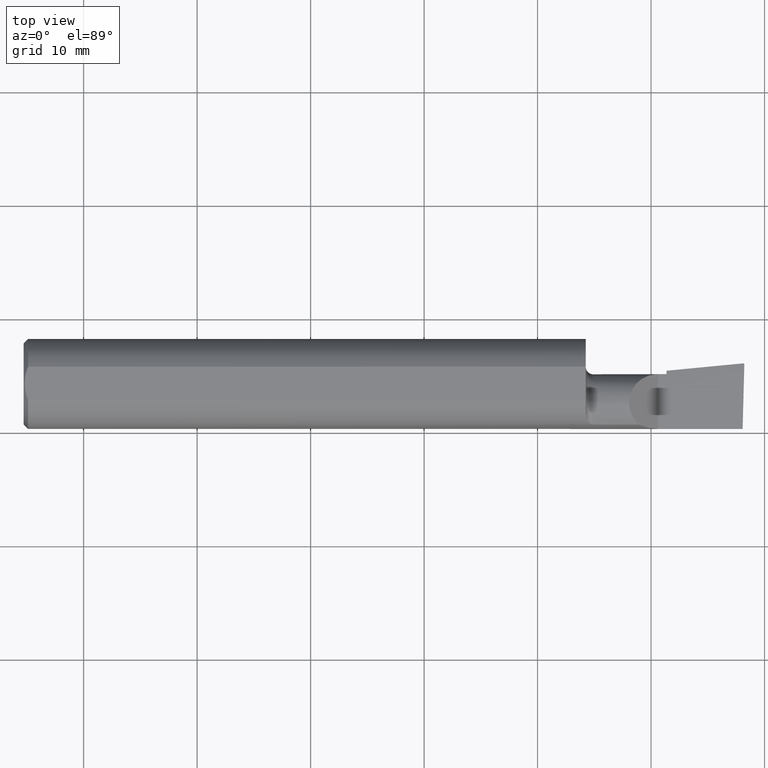
[diagram: clean part render]
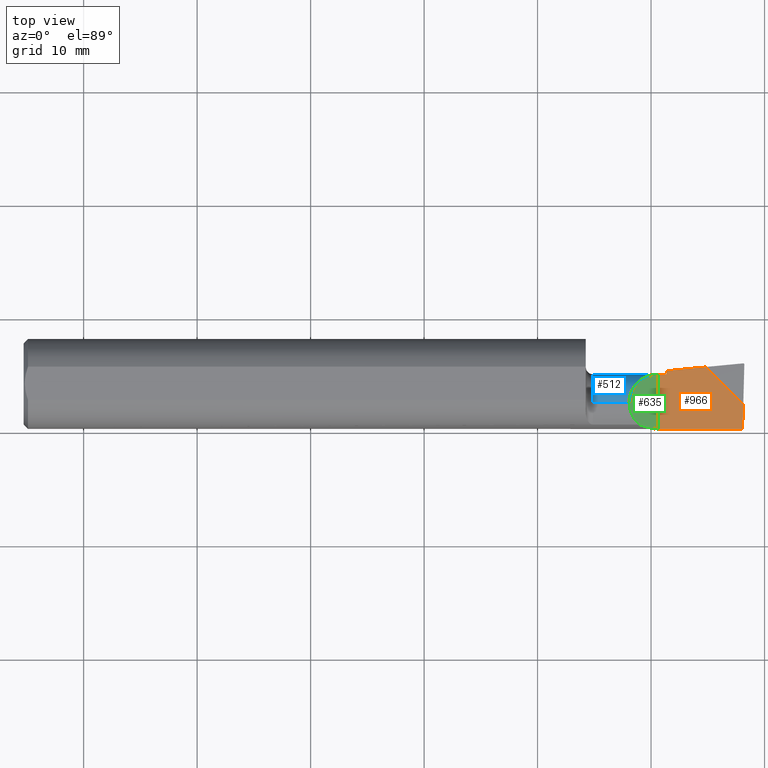
[diagram: same view with three faces highlighted in distinct colors, each labeled with its STEP entity id]
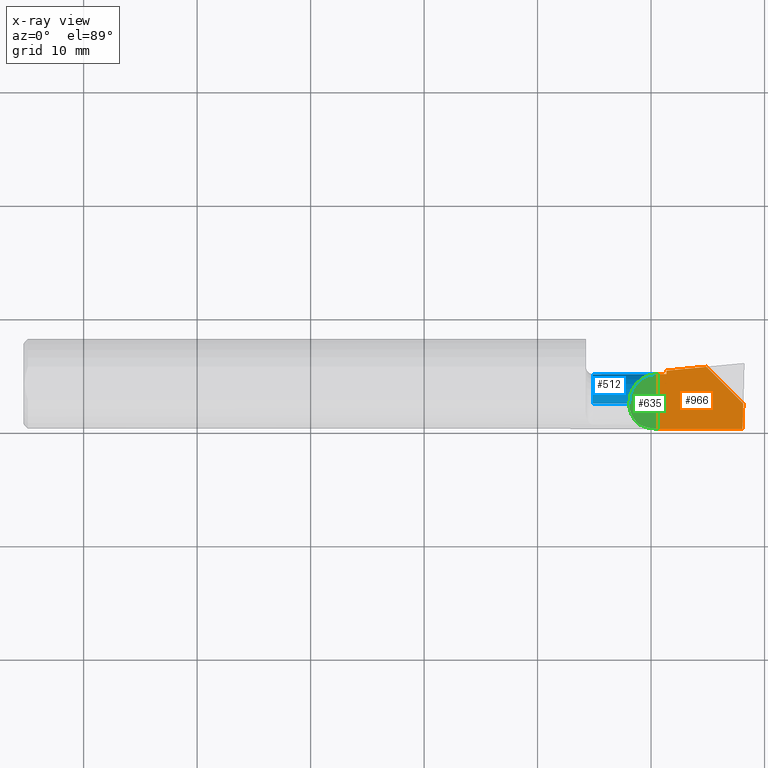
[diagram: x-ray of the same camera — body ghosted, the three highlighted faces saturated]
A machine part, top view with three faces highlighted in distinct colors.
The next image is the same camera in x-ray (body ghosted, the three faces saturated) — at least one of them is partly hidden behind the body in this view.
Their STEP definitions:

[orange] entity #966 — the highlighted planar face has unit normal (0, 0, -1).
#49 = VERTEX_POINT ( 'NONE', #256 ) ;
#51 = PLANE ( 'NONE',  #519 ) ;
#54 = CARTESIAN_POINT ( 'NONE',  ( 55.88000000000000256, -3.964939999999999465, -8.673617379884035472E-16 ) ) ;
#56 = CARTESIAN_POINT ( 'NONE',  ( 56.19984000534059021, 1.123334542424496041, -8.673617379884035472E-16 ) ) ;
#110 = VECTOR ( 'NONE', #1213, 999.9999999999998863 ) ;
#141 = EDGE_CURVE ( 'NONE', #336, #356, #1207, .T. ) ;
#158 = CARTESIAN_POINT ( 'NONE',  ( 56.64199999999999591, 4.444999999999999396, -8.673617379884035472E-16 ) ) ;
#166 = VECTOR ( 'NONE', #248, 1000.000000000000114 ) ;
#189 = CARTESIAN_POINT ( 'NONE',  ( 55.88000000000000256, 0.8610600000000002696, -8.673617379884035472E-16 ) ) ;
#201 = CARTESIAN_POINT ( 'NONE',  ( 59.81700000000001438, 1.826260000000001327, 0.000000000000000000 ) ) ;
#206 = DIRECTION ( 'NONE',  ( 1.000000000000000000, 0.000000000000000000, 0.000000000000000000 ) ) ;
#208 = VERTEX_POINT ( 'NONE', #189 ) ;
#214 = DIRECTION ( 'NONE',  ( 0.7071067811865439090, -0.7071067811865512365, 0.000000000000000000 ) ) ;
#216 = EDGE_CURVE ( 'NONE', #430, #208, #472, .T. ) ;
#231 = ORIENTED_EDGE ( 'NONE', *, *, #216, .F. ) ;
#248 = DIRECTION ( 'NONE',  ( 0.02637339639456100920, 0.9996521614854915194, 0.000000000000000000 ) ) ;
#256 = CARTESIAN_POINT ( 'NONE',  ( 63.40533060490047035, -1.762070604900495274, 0.000000000000000000 ) ) ;
#264 = LINE ( 'NONE', #862, #893 ) ;
#294 = EDGE_CURVE ( 'NONE', #336, #49, #878, .T. ) ;
#300 = LINE ( 'NONE', #1063, #311 ) ;
#311 = VECTOR ( 'NONE', #206, 1000.000000000000000 ) ;
#336 = VERTEX_POINT ( 'NONE', #684 ) ;
#340 = DIRECTION ( 'NONE',  ( -0.000000000000000000, 0.000000000000000000, -1.000000000000000000 ) ) ;
#342 = ORIENTED_EDGE ( 'NONE', *, *, #411, .F. ) ;
#356 = VERTEX_POINT ( 'NONE', #984 ) ;
#358 = CARTESIAN_POINT ( 'NONE',  ( 63.34721324168081225, -3.964939999999998577, -1.734723475976807094E-15 ) ) ;
#371 = DIRECTION ( 'NONE',  ( -1.000000000000000000, -0.000000000000000000, -0.000000000000000000 ) ) ;
#384 = CARTESIAN_POINT ( 'NONE',  ( 55.88000000000000256, 4.444999999999999396, -8.673617379884035472E-16 ) ) ;
#411 = EDGE_CURVE ( 'NONE', #208, #508, #300, .T. ) ;
#430 = VERTEX_POINT ( 'NONE', #54 ) ;
#442 = LINE ( 'NONE', #547, #166 ) ;
#447 = EDGE_CURVE ( 'NONE', #1229, #49, #442, .T. ) ;
#472 = LINE ( 'NONE', #384, #483 ) ;
#483 = VECTOR ( 'NONE', #1238, 1000.000000000000000 ) ;
#508 = VERTEX_POINT ( 'NONE', #824 ) ;
#519 = AXIS2_PLACEMENT_3D ( 'NONE', #706, #340, #901 ) ;
#547 = CARTESIAN_POINT ( 'NONE',  ( 63.56374090757875450, 4.242283142520748562, -8.673617379884035472E-16 ) ) ;
#553 = DIRECTION ( 'NONE',  ( 0.000000000000000000, 1.000000000000000000, 0.000000000000000000 ) ) ;
#574 = EDGE_CURVE ( 'NONE', #508, #356, #926, .T. ) ;
#575 = VECTOR ( 'NONE', #553, 1000.000000000000000 ) ;
#589 = ORIENTED_EDGE ( 'NONE', *, *, #141, .T. ) ;
#666 = EDGE_CURVE ( 'NONE', #1229, #430, #264, .T. ) ;
#684 = CARTESIAN_POINT ( 'NONE',  ( 60.14048454551709000, 1.502775454482920603, 0.000000000000000000 ) ) ;
#706 = CARTESIAN_POINT ( 'NONE',  ( 55.88000000000000256, 4.444999999999999396, -8.673617379884035472E-16 ) ) ;
#778 = ORIENTED_EDGE ( 'NONE', *, *, #574, .F. ) ;
#798 = VECTOR ( 'NONE', #214, 999.9999999999998863 ) ;
#824 = CARTESIAN_POINT ( 'NONE',  ( 56.64199999999999591, 0.8610600000000002696, -8.673617379884035472E-16 ) ) ;
#862 = CARTESIAN_POINT ( 'NONE',  ( 63.50000000000000000, -3.964939999999998577, -8.673617379884035472E-16 ) ) ;
#878 = LINE ( 'NONE', #201, #798 ) ;
#893 = VECTOR ( 'NONE', #371, 1000.000000000000000 ) ;
#901 = DIRECTION ( 'NONE',  ( -1.000000000000000000, 0.000000000000000000, 0.000000000000000000 ) ) ;
#926 = LINE ( 'NONE', #158, #575 ) ;
#966 = ADVANCED_FACE ( 'NONE', ( #1188 ), #51, .F. ) ;
#984 = CARTESIAN_POINT ( 'NONE',  ( 56.64199999999999591, 1.165909707461279421, -8.673617379884035472E-16 ) ) ;
#1063 = CARTESIAN_POINT ( 'NONE',  ( 49.53000000000000114, 0.8610600000000002696, -8.673617379884035472E-16 ) ) ;
#1089 = ORIENTED_EDGE ( 'NONE', *, *, #294, .F. ) ;
#1097 = ORIENTED_EDGE ( 'NONE', *, *, #447, .T. ) ;
#1167 = ORIENTED_EDGE ( 'NONE', *, *, #666, .F. ) ;
#1188 = FACE_OUTER_BOUND ( 'NONE', #1209, .T. ) ;
#1207 = LINE ( 'NONE', #56, #110 ) ;
#1209 = EDGE_LOOP ( 'NONE', ( #1097, #1089, #589, #778, #342, #231, #1167 ) ) ;
#1213 = DIRECTION ( 'NONE',  ( -0.9953961983671788527, -0.09584575252022424496, 0.000000000000000000 ) ) ;
#1229 = VERTEX_POINT ( 'NONE', #358 ) ;
#1238 = DIRECTION ( 'NONE',  ( -0.000000000000000000, 1.000000000000000000, -0.000000000000000000 ) ) ;

[blue] entity #512 — the highlighted cylindrical surface (edge-blend (fillet) strip) has radius 2.54 mm, axis along (-1, -0, -0).
#13 = LINE ( 'NONE', #891, #1071 ) ;
#14 = CARTESIAN_POINT ( 'NONE',  ( 56.57853211268948712, 0.02262286437495201682, -1.934391978167292914 ) ) ;
#23 = CARTESIAN_POINT ( 'NONE',  ( 56.64199999999999591, -0.3352786765604210406, -2.155498607722260207 ) ) ;
#39 = CARTESIAN_POINT ( 'NONE',  ( 50.16499999999999204, -1.678939999999999433, 2.540000000000000036 ) ) ;
#53 = CIRCLE ( 'NONE', #396, 2.540000000000000036 ) ;
#60 =( BOUNDED_CURVE ( )  B_SPLINE_CURVE ( 3, ( #1235, #14, #421, #504 ),
 .UNSPECIFIED., .F., .F. ) 
 B_SPLINE_CURVE_WITH_KNOTS ( ( 4, 4 ),
 ( 4.479557257772968981, 4.982985725396998689 ),
 .UNSPECIFIED. ) 
 CURVE ( )  GEOMETRIC_REPRESENTATION_ITEM ( )  RATIONAL_B_SPLINE_CURVE ( ( 1.000000000000000000, 0.9789912600431243117, 0.9789912600431243117, 1.000000000000000000 ) ) 
 REPRESENTATION_ITEM ( '' )  );
#62 = ORIENTED_EDGE ( 'NONE', *, *, #365, .F. ) ;
#65 = LINE ( 'NONE', #454, #1045 ) ;
#68 = ORIENTED_EDGE ( 'NONE', *, *, #177, .F. ) ;
#105 = ORIENTED_EDGE ( 'NONE', *, *, #585, .F. ) ;
#125 = CARTESIAN_POINT ( 'NONE',  ( 56.64199999999999591, 0.5162690332466144394, -1.277754788820009146 ) ) ;
#126 = VERTEX_POINT ( 'NONE', #1227 ) ;
#144 = CARTESIAN_POINT ( 'NONE',  ( 50.16499999999999204, -1.678939999999999433, 0.000000000000000000 ) ) ;
#154 = CYLINDRICAL_SURFACE ( 'NONE', #1011, 2.540000000000000036 ) ;
#170 = VERTEX_POINT ( 'NONE', #379 ) ;
#174 = CARTESIAN_POINT ( 'NONE',  ( 56.64199999999999591, -1.678939999999999433, -2.540000000000000480 ) ) ;
#177 = EDGE_CURVE ( 'NONE', #900, #126, #831, .T. ) ;
#184 = DIRECTION ( 'NONE',  ( -1.000000000000000000, -0.000000000000000000, -0.000000000000000000 ) ) ;
#189 = CARTESIAN_POINT ( 'NONE',  ( 55.88000000000000256, 0.8610600000000002696, -8.673617379884035472E-16 ) ) ;
#206 = DIRECTION ( 'NONE',  ( 1.000000000000000000, 0.000000000000000000, 0.000000000000000000 ) ) ;
#208 = VERTEX_POINT ( 'NONE', #189 ) ;
#225 = DIRECTION ( 'NONE',  ( 0.000000000000000000, 0.000000000000000000, -1.000000000000000000 ) ) ;
#229 = CIRCLE ( 'NONE', #932, 2.540000000000000036 ) ;
#272 = CARTESIAN_POINT ( 'NONE',  ( 56.63026341365514327, -0.3381379660845335589, -2.157280987322182764 ) ) ;
#275 = ORIENTED_EDGE ( 'NONE', *, *, #308, .F. ) ;
#278 = EDGE_CURVE ( 'NONE', #126, #989, #60, .T. ) ;
#280 = CARTESIAN_POINT ( 'NONE',  ( 56.61843269633377673, -0.3410007964591667551, -2.159057674088893819 ) ) ;
#300 = LINE ( 'NONE', #1063, #311 ) ;
#303 = ORIENTED_EDGE ( 'NONE', *, *, #278, .F. ) ;
#308 = EDGE_CURVE ( 'NONE', #423, #170, #922, .T. ) ;
#311 = VECTOR ( 'NONE', #206, 1000.000000000000000 ) ;
#321 = ORIENTED_EDGE ( 'NONE', *, *, #1179, .T. ) ;
#346 = FACE_OUTER_BOUND ( 'NONE', #987, .T. ) ;
#365 = EDGE_CURVE ( 'NONE', #989, #978, #488, .T. ) ;
#378 = AXIS2_PLACEMENT_3D ( 'NONE', #1194, #813, #918 ) ;
#379 = CARTESIAN_POINT ( 'NONE',  ( 53.34253999999999252, -1.678939999999999433, 2.540000000000000036 ) ) ;
#393 = CIRCLE ( 'NONE', #378, 2.540000000000000036 ) ;
#394 = CARTESIAN_POINT ( 'NONE',  ( 56.60306167935598154, 0.5218923600378172489, -1.268093797621263619 ) ) ;
#396 = AXIS2_PLACEMENT_3D ( 'NONE', #1020, #1118, #1036 ) ;
#399 = DIRECTION ( 'NONE',  ( -1.000000000000000000, -0.000000000000000000, -0.000000000000000000 ) ) ;
#411 = EDGE_CURVE ( 'NONE', #208, #508, #300, .T. ) ;
#421 = CARTESIAN_POINT ( 'NONE',  ( 56.54978564970318189, 0.3211662971372793440, -1.623811351964774552 ) ) ;
#423 = VERTEX_POINT ( 'NONE', #1205 ) ;
#428 = CARTESIAN_POINT ( 'NONE',  ( 50.16499999999999204, -1.678939999999999211, -2.540000000000000036 ) ) ;
#434 = CARTESIAN_POINT ( 'NONE',  ( 56.52208028681336316, 0.5329470779028453453, -1.248661505215251433 ) ) ;
#441 = DIRECTION ( 'NONE',  ( 1.000000000000000000, 0.000000000000000000, 0.000000000000000000 ) ) ;
#443 = VERTEX_POINT ( 'NONE', #428 ) ;
#454 = CARTESIAN_POINT ( 'NONE',  ( 49.53000000000000114, -1.678939999999999433, 2.540000000000000036 ) ) ;
#488 =( BOUNDED_CURVE ( )  B_SPLINE_CURVE ( 3, ( #774, #1159, #394, #125 ),
 .UNSPECIFIED., .F., .F. ) 
 B_SPLINE_CURVE_WITH_KNOTS ( ( 4, 4 ),
 ( 2.885266815324714518, 2.898469550304956677 ),
 .UNSPECIFIED. ) 
 CURVE ( )  GEOMETRIC_REPRESENTATION_ITEM ( )  RATIONAL_B_SPLINE_CURVE ( ( 1.000000000000000000, 0.9999854740351713511, 0.9999854740351713511, 1.000000000000000000 ) ) 
 REPRESENTATION_ITEM ( '' )  );
#504 = CARTESIAN_POINT ( 'NONE',  ( 56.52208028681336316, 0.5329470779028453453, -1.248661505215251433 ) ) ;
#508 = VERTEX_POINT ( 'NONE', #824 ) ;
#509 = CARTESIAN_POINT ( 'NONE',  ( 55.88000000000000256, 0.8610587299996853572, 0.002539999999979711265 ) ) ;
#512 = ADVANCED_FACE ( 'NONE', ( #346 ), #154, .T. ) ;
#585 = EDGE_CURVE ( 'NONE', #170, #967, #65, .T. ) ;
#630 = ORIENTED_EDGE ( 'NONE', *, *, #1057, .T. ) ;
#692 = VERTEX_POINT ( 'NONE', #174 ) ;
#697 = CARTESIAN_POINT ( 'NONE',  ( 54.39328266747760665, 0.8595720119238138279, 1.489257332522372135 ) ) ;
#747 = CARTESIAN_POINT ( 'NONE',  ( 56.64199999999999591, -1.678939999999999433, 0.000000000000000000 ) ) ;
#774 = CARTESIAN_POINT ( 'NONE',  ( 56.52208028681336316, 0.5329470779028453453, -1.248661505215251433 ) ) ;
#780 = CARTESIAN_POINT ( 'NONE',  ( 53.34253999999999252, -1.678939999999999433, 2.540000000000000036 ) ) ;
#804 = ORIENTED_EDGE ( 'NONE', *, *, #411, .T. ) ;
#813 = DIRECTION ( 'NONE',  ( -1.000000000000000000, -0.000000000000000000, -0.000000000000000000 ) ) ;
#824 = CARTESIAN_POINT ( 'NONE',  ( 56.64199999999999591, 0.8610600000000002696, -8.673617379884035472E-16 ) ) ;
#829 = CARTESIAN_POINT ( 'NONE',  ( 49.53000000000000114, -1.678939999999999433, 0.000000000000000000 ) ) ;
#831 =( BOUNDED_CURVE ( )  B_SPLINE_CURVE ( 3, ( #1150, #272, #280, #1136 ),
 .UNSPECIFIED., .F., .T. ) 
 B_SPLINE_CURVE_WITH_KNOTS ( ( 4, 4 ),
 ( 3.384715756874629555, 3.388695282948745113 ),
 .UNSPECIFIED. ) 
 CURVE ( )  GEOMETRIC_REPRESENTATION_ITEM ( )  RATIONAL_B_SPLINE_CURVE ( ( 1.000000000000000000, 0.9999986802814542219, 0.9999986802814542219, 1.000000000000000000 ) ) 
 REPRESENTATION_ITEM ( '' )  );
#834 = DIRECTION ( 'NONE',  ( -1.000000000000000000, -0.000000000000000000, -0.000000000000000000 ) ) ;
#869 = ORIENTED_EDGE ( 'NONE', *, *, #1146, .T. ) ;
#871 = CIRCLE ( 'NONE', #992, 2.540000000000000036 ) ;
#884 = EDGE_CURVE ( 'NONE', #692, #443, #13, .T. ) ;
#891 = CARTESIAN_POINT ( 'NONE',  ( 49.53000000000000114, -1.678939999999999211, -2.540000000000000036 ) ) ;
#900 = VERTEX_POINT ( 'NONE', #23 ) ;
#907 = DIRECTION ( 'NONE',  ( 0.000000000000000000, 0.000000000000000000, 1.000000000000000000 ) ) ;
#918 = DIRECTION ( 'NONE',  ( 0.000000000000000000, 0.000000000000000000, 1.000000000000000000 ) ) ;
#922 =( BOUNDED_CURVE ( )  B_SPLINE_CURVE ( 3, ( #509, #697, #1080, #780 ),
 .UNSPECIFIED., .F., .T. ) 
 B_SPLINE_CURVE_WITH_KNOTS ( ( 4, 4 ),
 ( 4.713388980551348695, 6.283185307179586232 ),
 .UNSPECIFIED. ) 
 CURVE ( )  GEOMETRIC_REPRESENTATION_ITEM ( )  RATIONAL_B_SPLINE_CURVE ( ( 1.000000000000000000, 0.8049734974886378902, 0.8049734974886378902, 1.000000000000000000 ) ) 
 REPRESENTATION_ITEM ( '' )  );
#932 = AXIS2_PLACEMENT_3D ( 'NONE', #144, #441, #225 ) ;
#967 = VERTEX_POINT ( 'NONE', #39 ) ;
#978 = VERTEX_POINT ( 'NONE', #1092 ) ;
#987 = EDGE_LOOP ( 'NONE', ( #1102, #1075, #630, #105, #275, #869, #804, #321, #62, #303, #68 ) ) ;
#989 = VERTEX_POINT ( 'NONE', #434 ) ;
#992 = AXIS2_PLACEMENT_3D ( 'NONE', #747, #184, #1134 ) ;
#1011 = AXIS2_PLACEMENT_3D ( 'NONE', #829, #1218, #907 ) ;
#1020 = CARTESIAN_POINT ( 'NONE',  ( 55.88000000000000256, -1.678939999999999433, 0.000000000000000000 ) ) ;
#1036 = DIRECTION ( 'NONE',  ( 0.000000000000000000, 0.000000000000000000, 1.000000000000000000 ) ) ;
#1045 = VECTOR ( 'NONE', #834, 1000.000000000000000 ) ;
#1057 = EDGE_CURVE ( 'NONE', #443, #967, #229, .T. ) ;
#1063 = CARTESIAN_POINT ( 'NONE',  ( 49.53000000000000114, 0.8610600000000002696, -8.673617379884035472E-16 ) ) ;
#1066 = EDGE_CURVE ( 'NONE', #900, #692, #393, .T. ) ;
#1071 = VECTOR ( 'NONE', #399, 1000.000000000000000 ) ;
#1075 = ORIENTED_EDGE ( 'NONE', *, *, #884, .T. ) ;
#1080 = CARTESIAN_POINT ( 'NONE',  ( 53.34253999999997831, -0.1922219241183829586, 2.540000000000000036 ) ) ;
#1092 = CARTESIAN_POINT ( 'NONE',  ( 56.64199999999999591, 0.5162690332466144394, -1.277754788820009146 ) ) ;
#1102 = ORIENTED_EDGE ( 'NONE', *, *, #1066, .T. ) ;
#1118 = DIRECTION ( 'NONE',  ( -1.000000000000000000, -0.000000000000000000, -0.000000000000000000 ) ) ;
#1134 = DIRECTION ( 'NONE',  ( 0.000000000000000000, 0.000000000000000000, 1.000000000000000000 ) ) ;
#1136 = CARTESIAN_POINT ( 'NONE',  ( 56.60650789487561951, -0.3438671563499254846, -2.160828660988210803 ) ) ;
#1146 = EDGE_CURVE ( 'NONE', #423, #208, #53, .T. ) ;
#1150 = CARTESIAN_POINT ( 'NONE',  ( 56.64199999999999591, -0.3352786765604210406, -2.155498607722260207 ) ) ;
#1159 = CARTESIAN_POINT ( 'NONE',  ( 56.56308786096882102, 0.5274517890126302344, -1.258395895548293009 ) ) ;
#1179 = EDGE_CURVE ( 'NONE', #508, #978, #871, .T. ) ;
#1194 = CARTESIAN_POINT ( 'NONE',  ( 56.64199999999999591, -1.678939999999999433, 0.000000000000000000 ) ) ;
#1205 = CARTESIAN_POINT ( 'NONE',  ( 55.88000000000000256, 0.8610587299996853572, 0.002539999999979711265 ) ) ;
#1218 = DIRECTION ( 'NONE',  ( -1.000000000000000000, -0.000000000000000000, -0.000000000000000000 ) ) ;
#1227 = CARTESIAN_POINT ( 'NONE',  ( 56.60650789487561951, -0.3438671563499254846, -2.160828660988210803 ) ) ;
#1235 = CARTESIAN_POINT ( 'NONE',  ( 56.60650789487561951, -0.3438671563499254846, -2.160828660988210803 ) ) ;

[green] entity #635 — the highlighted planar face has unit normal (-0.7071, 0, -0.7071).
#137 =( BOUNDED_CURVE ( )  B_SPLINE_CURVE ( 3, ( #923, #345, #1201, #1216 ),
 .UNSPECIFIED., .F., .T. ) 
 B_SPLINE_CURVE_WITH_KNOTS ( ( 4, 4 ),
 ( 0.000000000000000000, 0.8576058604657700313 ),
 .UNSPECIFIED. ) 
 CURVE ( )  GEOMETRIC_REPRESENTATION_ITEM ( )  RATIONAL_B_SPLINE_CURVE ( ( 1.000000000000000000, 0.9396427478180653381, 0.9396427478180653381, 1.000000000000000000 ) ) 
 REPRESENTATION_ITEM ( '' )  );
#170 = VERTEX_POINT ( 'NONE', #379 ) ;
#179 = DIRECTION ( 'NONE',  ( -0.7071067811865489050, 0.000000000000000000, -0.7071067811865462405 ) ) ;
#200 = CARTESIAN_POINT ( 'NONE',  ( 54.22074505735906769, -3.599887049924353821, 1.661794942640917094 ) ) ;
#235 = CARTESIAN_POINT ( 'NONE',  ( 54.22074505735906769, -3.599887049924353821, 1.661794942640917094 ) ) ;
#254 = CARTESIAN_POINT ( 'NONE',  ( 54.74300171423059425, -3.840973355998292149, 1.139538285769383430 ) ) ;
#308 = EDGE_CURVE ( 'NONE', #423, #170, #922, .T. ) ;
#345 = CARTESIAN_POINT ( 'NONE',  ( 53.34253999999998541, -2.428222866824016446, 2.540000000000000036 ) ) ;
#359 = VECTOR ( 'NONE', #874, 1000.000000000000000 ) ;
#366 = DIRECTION ( 'NONE',  ( -0.7071067811865462405, 0.000000000000000000, 0.7071067811865489050 ) ) ;
#379 = CARTESIAN_POINT ( 'NONE',  ( 53.34253999999999252, -1.678939999999999433, 2.540000000000000036 ) ) ;
#406 = EDGE_CURVE ( 'NONE', #423, #788, #1074, .T. ) ;
#416 = EDGE_CURVE ( 'NONE', #788, #810, #696, .T. ) ;
#423 = VERTEX_POINT ( 'NONE', #1205 ) ;
#439 = ORIENTED_EDGE ( 'NONE', *, *, #416, .F. ) ;
#470 = FACE_OUTER_BOUND ( 'NONE', #883, .T. ) ;
#498 = CARTESIAN_POINT ( 'NONE',  ( 55.88000000000000256, 4.444999999999999396, 0.002539999999979711265 ) ) ;
#499 = ORIENTED_EDGE ( 'NONE', *, *, #308, .T. ) ;
#509 = CARTESIAN_POINT ( 'NONE',  ( 55.88000000000000256, 0.8610587299996853572, 0.002539999999979711265 ) ) ;
#595 = CARTESIAN_POINT ( 'NONE',  ( 55.88000000000000256, -3.964939186418879213, 0.002539999999978843903 ) ) ;
#616 = AXIS2_PLACEMENT_3D ( 'NONE', #657, #179, #366 ) ;
#635 = ADVANCED_FACE ( 'NONE', ( #470 ), #1234, .F. ) ;
#657 = CARTESIAN_POINT ( 'NONE',  ( 52.19699999999999562, 2.540000000000000480, 3.685539999999999150 ) ) ;
#696 =( BOUNDED_CURVE ( )  B_SPLINE_CURVE ( 3, ( #595, #971, #254, #235 ),
 .UNSPECIFIED., .F., .F. ) 
 B_SPLINE_CURVE_WITH_KNOTS ( ( 4, 4 ),
 ( 4.713029595418891660, 5.144867427157565842 ),
 .UNSPECIFIED. ) 
 CURVE ( )  GEOMETRIC_REPRESENTATION_ITEM ( )  RATIONAL_B_SPLINE_CURVE ( ( 1.000000000000000000, 0.9845199556095911575, 0.9845199556095911575, 1.000000000000000000 ) ) 
 REPRESENTATION_ITEM ( '' )  );
#697 = CARTESIAN_POINT ( 'NONE',  ( 54.39328266747760665, 0.8595720119238138279, 1.489257332522372135 ) ) ;
#780 = CARTESIAN_POINT ( 'NONE',  ( 53.34253999999999252, -1.678939999999999433, 2.540000000000000036 ) ) ;
#788 = VERTEX_POINT ( 'NONE', #1051 ) ;
#810 = VERTEX_POINT ( 'NONE', #200 ) ;
#874 = DIRECTION ( 'NONE',  ( 0.000000000000000000, -1.000000000000000000, 0.000000000000000000 ) ) ;
#883 = EDGE_LOOP ( 'NONE', ( #887, #499, #896, #439 ) ) ;
#887 = ORIENTED_EDGE ( 'NONE', *, *, #406, .F. ) ;
#896 = ORIENTED_EDGE ( 'NONE', *, *, #1014, .T. ) ;
#922 =( BOUNDED_CURVE ( )  B_SPLINE_CURVE ( 3, ( #509, #697, #1080, #780 ),
 .UNSPECIFIED., .F., .T. ) 
 B_SPLINE_CURVE_WITH_KNOTS ( ( 4, 4 ),
 ( 4.713388980551348695, 6.283185307179586232 ),
 .UNSPECIFIED. ) 
 CURVE ( )  GEOMETRIC_REPRESENTATION_ITEM ( )  RATIONAL_B_SPLINE_CURVE ( ( 1.000000000000000000, 0.8049734974886378902, 0.8049734974886378902, 1.000000000000000000 ) ) 
 REPRESENTATION_ITEM ( '' )  );
#923 = CARTESIAN_POINT ( 'NONE',  ( 53.34253999999999252, -1.678939999999999433, 2.540000000000000036 ) ) ;
#971 = CARTESIAN_POINT ( 'NONE',  ( 55.30478309583587304, -3.964570693771735765, 0.5777569041641154035 ) ) ;
#1014 = EDGE_CURVE ( 'NONE', #170, #810, #137, .T. ) ;
#1051 = CARTESIAN_POINT ( 'NONE',  ( 55.88000000000000256, -3.964939186418879213, 0.002539999999978843903 ) ) ;
#1074 = LINE ( 'NONE', #498, #359 ) ;
#1080 = CARTESIAN_POINT ( 'NONE',  ( 53.34253999999997831, -0.1922219241183829586, 2.540000000000000036 ) ) ;
#1201 = CARTESIAN_POINT ( 'NONE',  ( 53.65407863508172426, -3.109668751225283412, 2.228461364918261189 ) ) ;
#1205 = CARTESIAN_POINT ( 'NONE',  ( 55.88000000000000256, 0.8610587299996853572, 0.002539999999979711265 ) ) ;
#1216 = CARTESIAN_POINT ( 'NONE',  ( 54.22074505735906769, -3.599887049924353821, 1.661794942640917094 ) ) ;
#1234 = PLANE ( 'NONE',  #616 ) ;